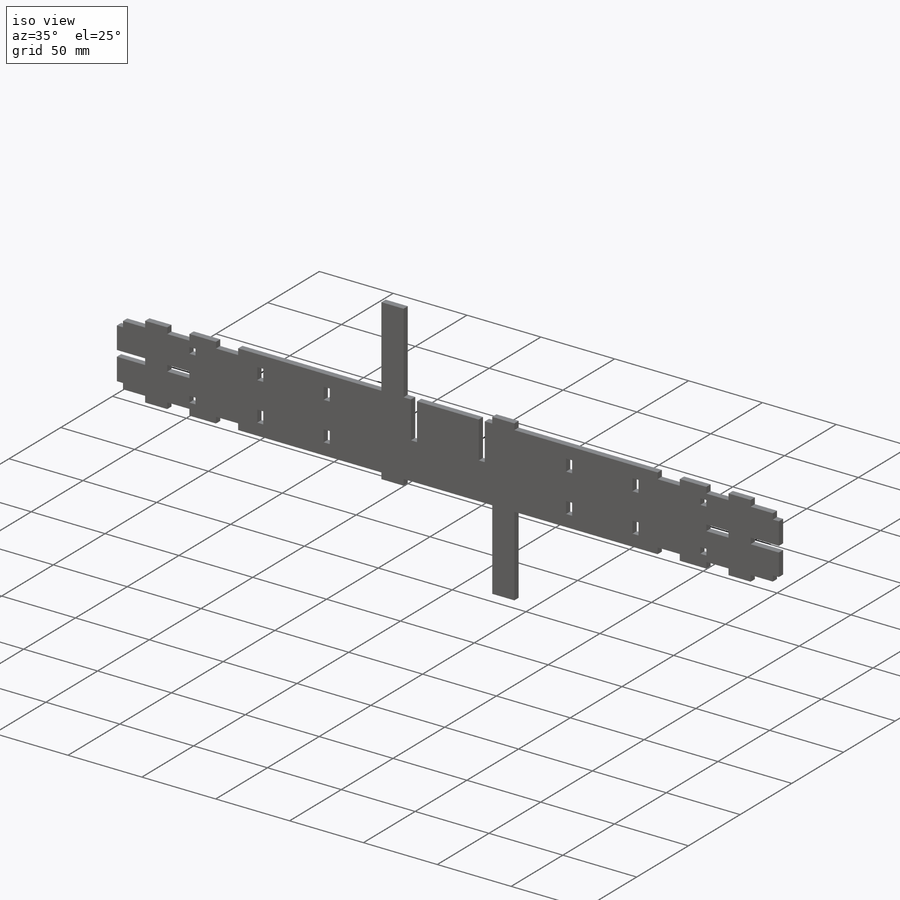
[diagram: iso view]
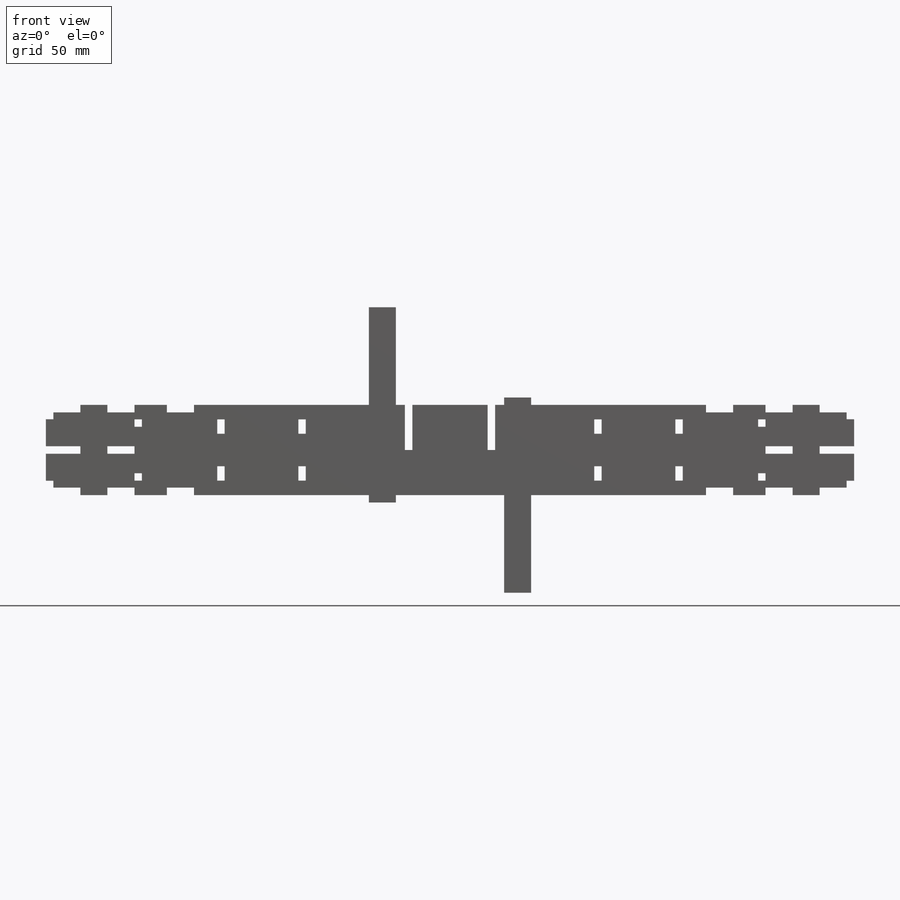
[diagram: front view]
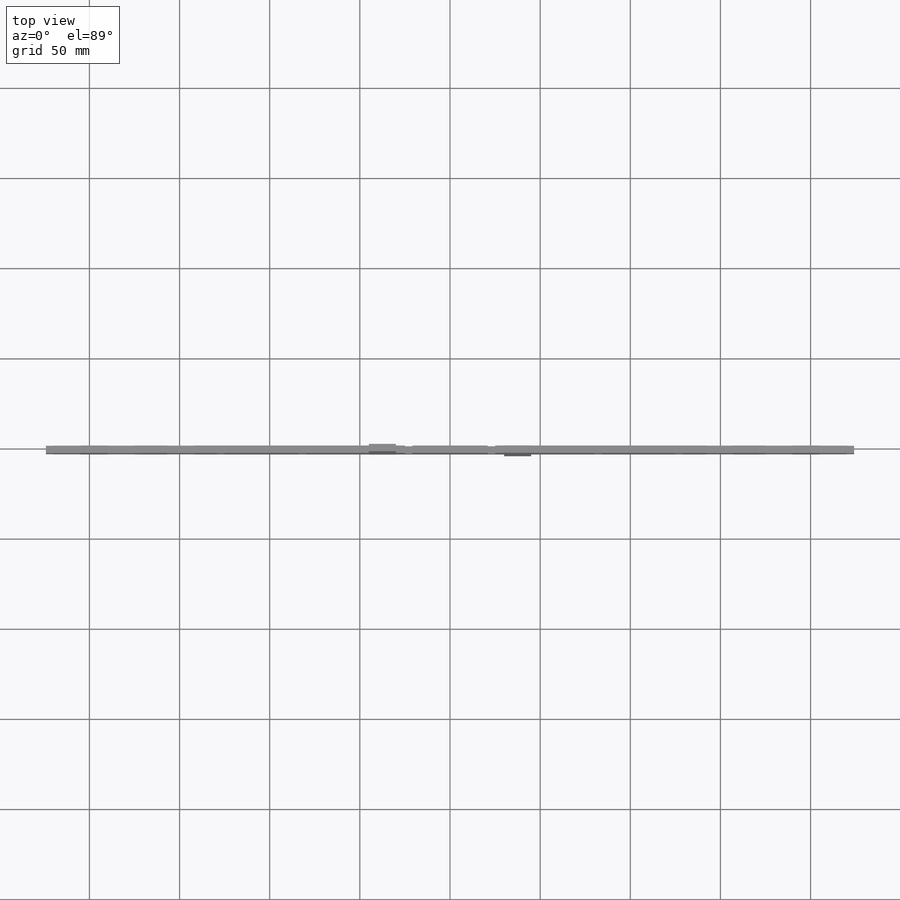
[diagram: top view]
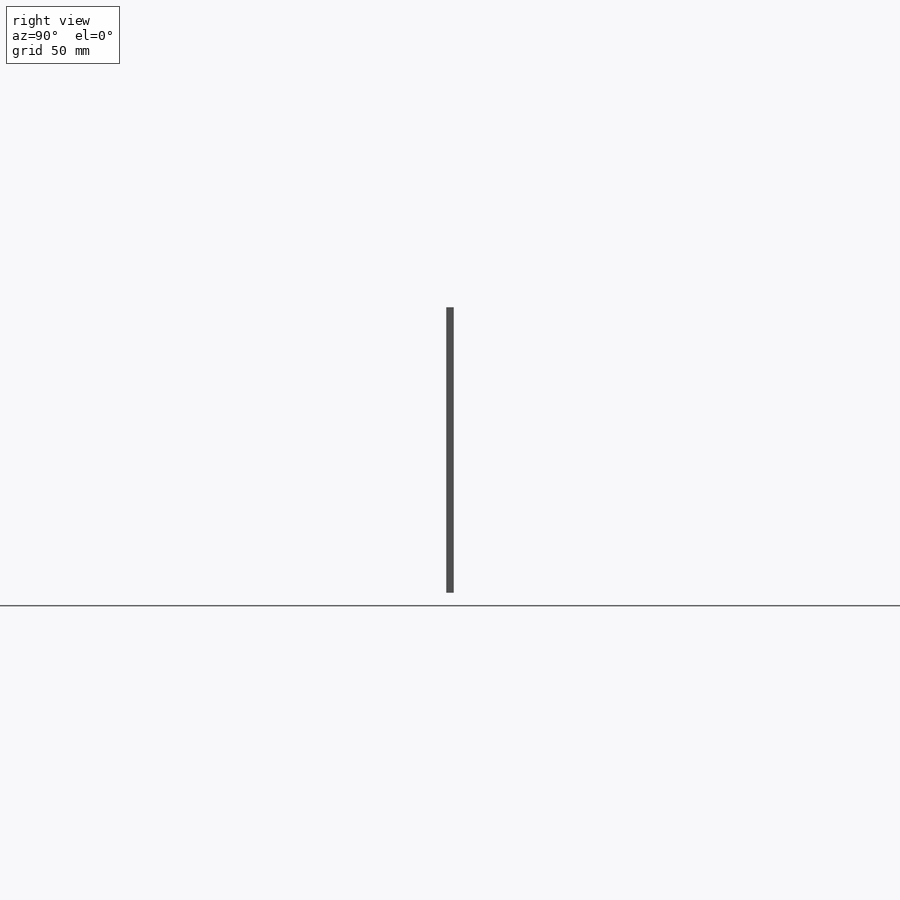
[diagram: right view]
SOLIDWORKS PART (.sldprt)
format: sldprt  version: not decoded by parser v0  size: 687,616 bytes
history: native  units: mm
features: sketch x5, cut_extrude x4, material x1, extrude x1 (+11 scaffold rows collapsed)
feature tree (22):
  scaffold x11  (default folders/planes/origin — collapsed)
  material  "Corrugated Paper"
  sketch  "Sketch1"  dims[c1.D1=15.0mm c1.D2=440.0mm c1.D3=54.2mm c1.D4=50.0mm c1.D5=8.0mm c1.D6=25.0mm c1.D7=30.0mm c1.D8=80.0mm c1.D9=125.0mm c1.D10=4.1mm c2.D5=8.0mm c2.D11=8.0mm c2.D12=~10.774973mm c2.D13=~20.125027mm c3.D12=18.0mm c3.D13=4.1mm]
  extrude  "Boss-Extrude1"  Depth=4.1mm
  sketch  "Sketch2"
  cut_extrude  "top right"  Depth=50.1mm
  sketch  "Sketch3"
  cut_extrude  "bottom left"  Depth=50.1mm
  sketch  "Sketch4"
  cut_extrude  "top left"  Depth=36.1mm
  sketch  "Sketch5"
  cut_extrude  "bottom right"  Depth=36.1mm
decode coverage: 6 of 10 modeling features carry decoded parameters
note: ~ marks probable driven/reference dimensions
note: suppression state not decoded; provenance and decode notes live in map.json
